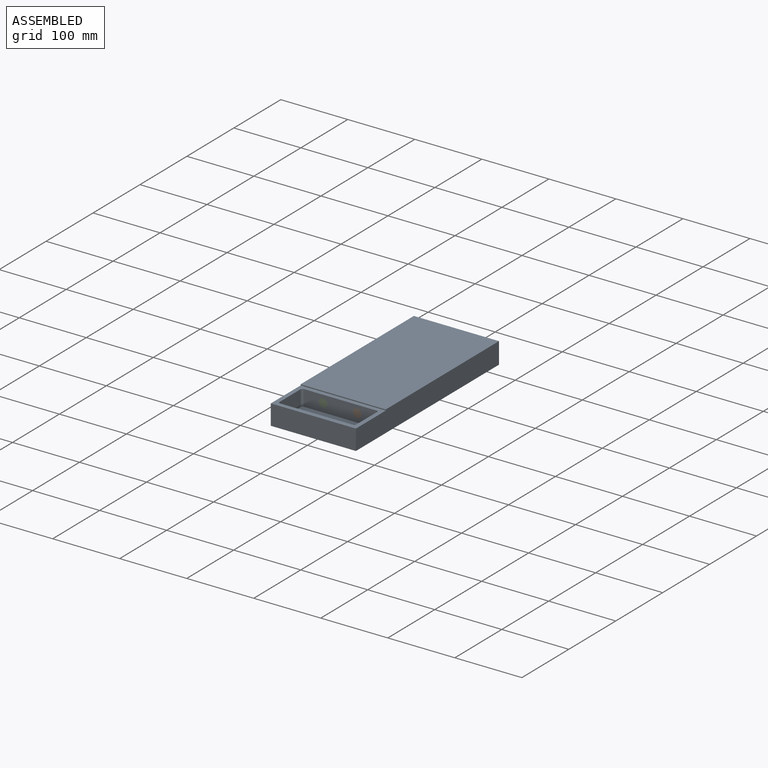
[diagram: assembled view]
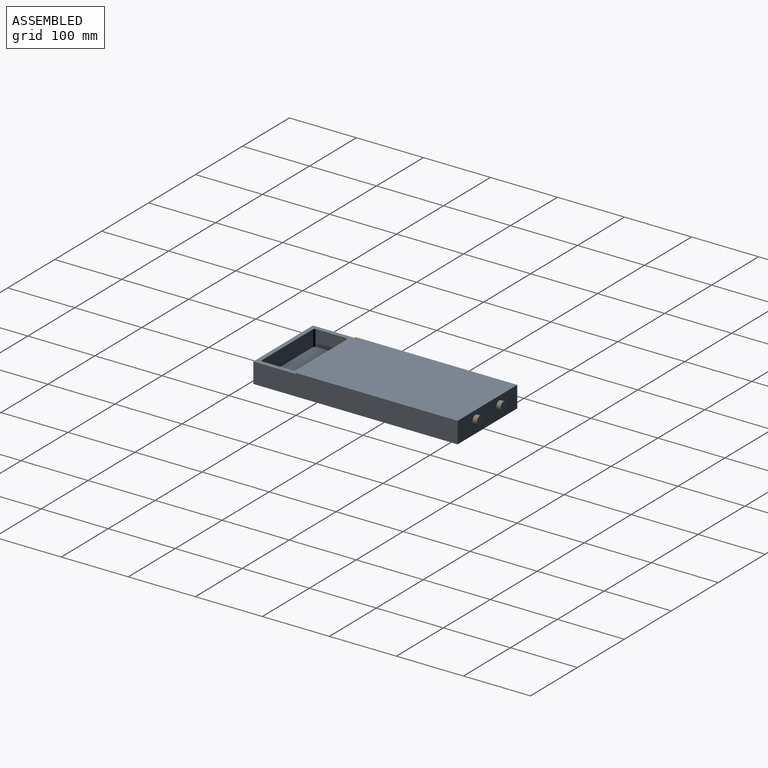
[diagram: assembled view, second angle]
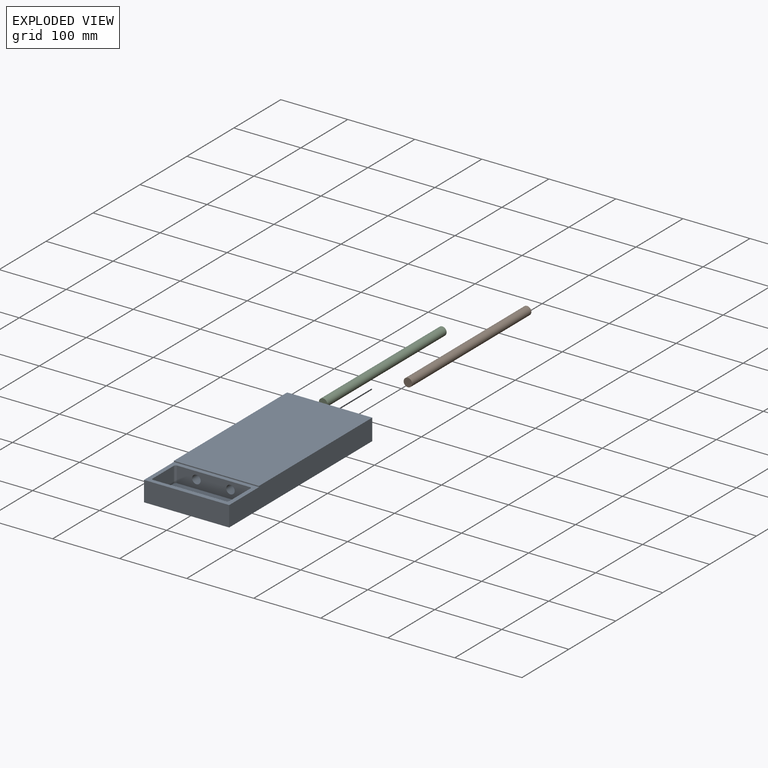
[diagram: exploded view]
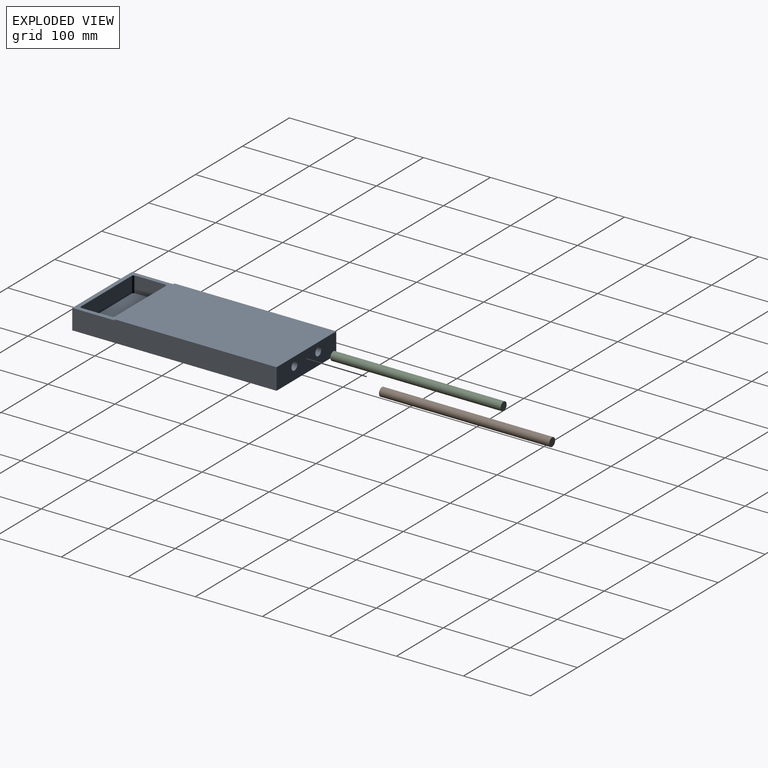
[diagram: exploded view, second angle]
ASSEMBLY  parts=3 mates=2
PART A: 19 faces, bbox 127x304.8x31.8 mm
  f0: plane 241.3x127mm, normal (0,0,1), area 30645.1mm2, adj f1,f2,f5,f13
  f1: plane 304.8x31.75mm, normal (1,0,0), area 9580.6mm2, adj f0,f3,f4,f5,f13,f14
  f2: plane 304.8x31.75mm, normal (-1,0,0), area 9580.6mm2, adj f0,f3,f4,f5,f13,f14
  f3: plane 304.8x127mm, normal (0,0,-1), area 38709.6mm2, adj f1,f2,f4,f5
  f4: plane 127x30.23mm, normal (0,-1,0), area 3838.7mm2, adj f1,f2,f3,f14
  f5: plane 127x31.75mm, normal (0,1,0), area 3778.9mm2, adj f0,f1,f2,f3,f11,f12
  f6: plane 107.95x23.88mm, normal (0,-1,0), area 2324.1mm2, adj f10,f11,f12,f14,f15,f18
  f7: plane 44.45x23.88mm, normal (1,0,0), area 1061.3mm2, adj f10,f14,f15,f16
  f8: plane 107.95x23.88mm, normal (0,1,0), area 2577.4mm2, adj f10,f14,f16,f17
  f9: plane 44.45x23.88mm, normal (-1,0,0), area 1061.3mm2, adj f10,f14,f17,f18
  f10: plane 114.3x50.8mm, normal (0,0,1), area 5797.8mm2, adj f6,f7,f8,f9,f15,f16,f17,f18
  f11: cylinder r=6.35mm len=247.65mm, axis (0,1,0), area 9880.8mm2, adj f5,f6
  f12: cylinder r=6.35mm len=247.65mm, axis (0,1,0), area 9880.8mm2, adj f5,f6
  f13: plane 127x1.52mm, normal (0,-1,0), area 193.5mm2, adj f0,f1,f2,f14
  f14: plane 127x63.5mm, normal (0,0,1), area 2266.7mm2, adj f1,f2,f4,f6,f7,f8,f9,f13
  f15: cylinder r=3.17mm len=23.88mm, axis (0,0,-1), area 119.1mm2, adj f6,f7,f10,f14
  f16: cylinder r=3.17mm len=23.88mm, axis (0,0,1), area 119.1mm2, adj f7,f8,f10,f14
  f17: cylinder r=3.17mm len=23.88mm, axis (0,0,-1), area 119.1mm2, adj f8,f9,f10,f14
  f18: cylinder r=3.17mm len=23.88mm, axis (0,0,1), area 119.1mm2, adj f6,f9,f10,f14
PART B: 3 faces, bbox 12.7x254x12.7 mm
  f0: cylinder r=6.35mm len=254mm, axis (0,1,0), area 10134.1mm2, adj f1,f2
  f1: plane 12.7x12.7mm, normal (0,-1,0), area 126.7mm2, adj f0
  f2: plane 12.7x12.7mm, normal (0,1,0), area 126.7mm2, adj f0
PART C: same geometry as B
PLACE A t=(0.83,-36.11,-25.46)mm
PLACE B t=(26.23,-4.36,-22.28)mm
PLACE C t=(-24.57,-4.36,-22.28)mm
MATE parallel A.f6 <-> B.f0  axis (0,-1,0) through (0.83,-131.36,-23.13)mm
MATE planar C.f0 <-> A.f6  axis (0,-1,0) through (-24.57,-131.36,-22.28)mm
